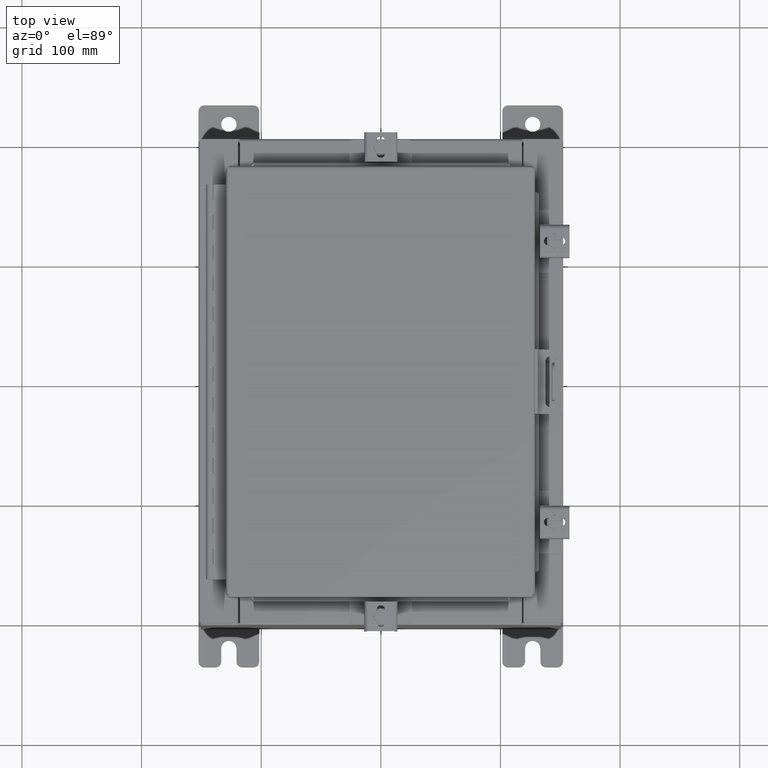
[diagram: clean part render]
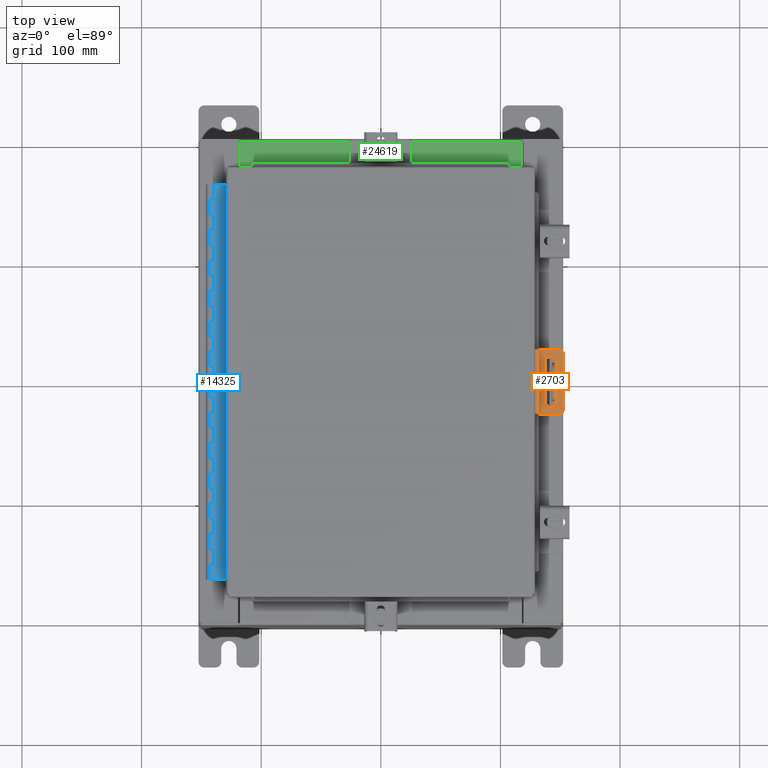
[diagram: same view with three faces highlighted in distinct colors, each labeled with its STEP entity id]
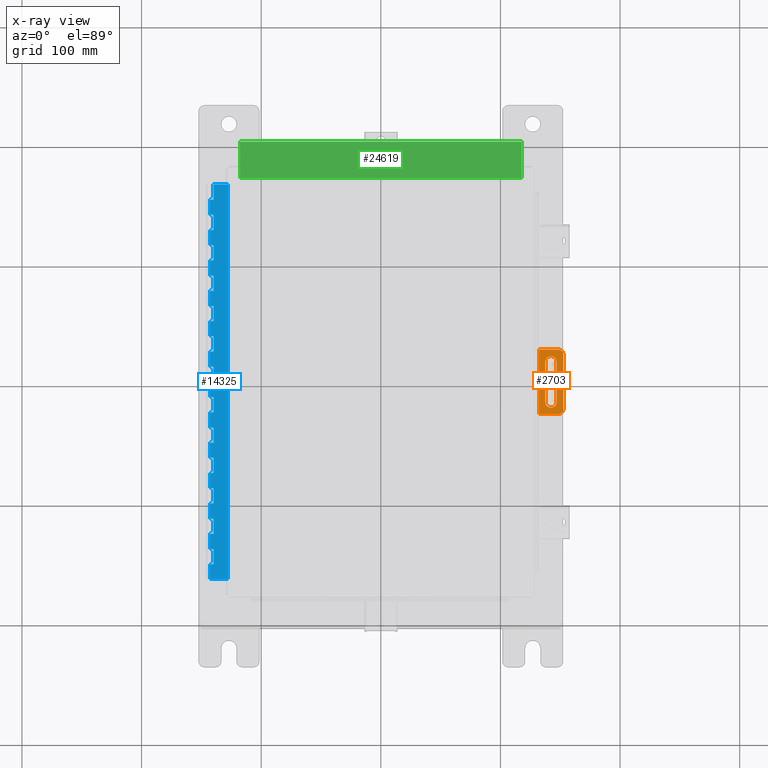
[diagram: x-ray of the same camera — body ghosted, the three highlighted faces saturated]
A machine part, top view with three faces highlighted in distinct colors.
The next image is the same camera in x-ray (body ghosted, the three faces saturated) — at least one of them is partly hidden behind the body in this view.
Their STEP definitions:

[orange] entity #2703 — the highlighted planar face has unit normal (0, -0, -1).
#27 = AXIS2_PLACEMENT_3D ( 'NONE', #14111, #2066, #16121 ) ;
#209 = EDGE_LOOP ( 'NONE', ( #11507, #19767, #4481, #22010, #22590, #15002 ) ) ;
#731 = CARTESIAN_POINT ( 'NONE',  ( 0.3460000000000000900, -0.3000000000000008200, -0.6534999999999997500 ) ) ;
#947 = EDGE_CURVE ( 'NONE', #8417, #24332, #3268, .T. ) ;
#1013 = DIRECTION ( 'NONE',  ( 3.496114991891766800E-015, 1.000000000000000000, -0.0000000000000000000 ) ) ;
#1136 = EDGE_CURVE ( 'NONE', #8820, #6342, #20865, .T. ) ;
#2066 = DIRECTION ( 'NONE',  ( 3.496114991891766800E-015, 1.000000000000000000, 0.0000000000000000000 ) ) ;
#2544 = ORIENTED_EDGE ( 'NONE', *, *, #24155, .F. ) ;
#2680 = EDGE_CURVE ( 'NONE', #9572, #26076, #20170, .T. ) ;
#2703 = ADVANCED_FACE ( 'NONE', ( #8848, #19532 ), #5962, .F. ) ;
#2712 = VERTEX_POINT ( 'NONE', #24069 ) ;
#3268 = CIRCLE ( 'NONE', #4375, 0.1559999999999999200 ) ;
#3436 = LINE ( 'NONE', #731, #23570 ) ;
#3899 = CARTESIAN_POINT ( 'NONE',  ( 0.7210000000000000900, -0.3000000000000021500, -0.6534999999999998600 ) ) ;
#3938 = CARTESIAN_POINT ( 'NONE',  ( 0.9399999999999998400, -0.3000000000000029300, 1.059999999999999600 ) ) ;
#4375 = AXIS2_PLACEMENT_3D ( 'NONE', #13075, #1013, #15079 ) ;
#4481 = ORIENTED_EDGE ( 'NONE', *, *, #21817, .T. ) ;
#4564 = CARTESIAN_POINT ( 'NONE',  ( 0.7840000000000000300, -0.3000000000000023800, -1.060000000000000300 ) ) ;
#4722 = EDGE_CURVE ( 'NONE', #16506, #9535, #24148, .T. ) ;
#5884 = DIRECTION ( 'NONE',  ( 3.496114991891766800E-015, 1.000000000000000000, -0.0000000000000000000 ) ) ;
#5962 = PLANE ( 'NONE',  #23287 ) ;
#6342 = VERTEX_POINT ( 'NONE', #21374 ) ;
#7412 = ORIENTED_EDGE ( 'NONE', *, *, #4722, .F. ) ;
#7641 = DIRECTION ( 'NONE',  ( 3.496114991891766800E-015, 1.000000000000000000, 0.0000000000000000000 ) ) ;
#7979 = DIRECTION ( 'NONE',  ( 1.000000000000000000, -3.496114991891766800E-015, 0.0000000000000000000 ) ) ;
#8302 = ORIENTED_EDGE ( 'NONE', *, *, #11667, .F. ) ;
#8417 = VERTEX_POINT ( 'NONE', #11375 ) ;
#8420 = CARTESIAN_POINT ( 'NONE',  ( 0.9399999999999998400, -0.3000000000000029300, 0.9040000000000000300 ) ) ;
#8498 = CARTESIAN_POINT ( 'NONE',  ( 0.7210000000000002000, -0.3000000000000021500, 0.6595000000000002000 ) ) ;
#8820 = VERTEX_POINT ( 'NONE', #15351 ) ;
#8848 = FACE_BOUND ( 'NONE', #21340, .T. ) ;
#9535 = VERTEX_POINT ( 'NONE', #3899 ) ;
#9572 = VERTEX_POINT ( 'NONE', #24029 ) ;
#10184 = VECTOR ( 'NONE', #11656, 39.37007874015748100 ) ;
#10605 = ORIENTED_EDGE ( 'NONE', *, *, #17242, .F. ) ;
#10663 = EDGE_CURVE ( 'NONE', #26076, #8417, #18349, .T. ) ;
#10801 = VERTEX_POINT ( 'NONE', #18245 ) ;
#11088 = VECTOR ( 'NONE', #24331, 39.37007874015748100 ) ;
#11375 = CARTESIAN_POINT ( 'NONE',  ( 0.9399999999999998400, -0.3000000000000029300, -0.9040000000000002500 ) ) ;
#11507 = ORIENTED_EDGE ( 'NONE', *, *, #10663, .T. ) ;
#11656 = DIRECTION ( 'NONE',  ( -0.0000000000000000000, -0.0000000000000000000, 1.000000000000000000 ) ) ;
#11667 = EDGE_CURVE ( 'NONE', #2712, #16506, #23653, .T. ) ;
#11775 = VECTOR ( 'NONE', #25926, 39.37007874015748100 ) ;
#11968 = DIRECTION ( 'NONE',  ( -3.496114991891766800E-015, -1.000000000000000000, 0.0000000000000000000 ) ) ;
#12448 = DIRECTION ( 'NONE',  ( -1.000000000000000000, 3.496114991891766400E-015, 0.0000000000000000000 ) ) ;
#13075 = CARTESIAN_POINT ( 'NONE',  ( 0.7839999999999999200, -0.3000000000000023200, -0.9040000000000002500 ) ) ;
#13487 = VECTOR ( 'NONE', #13638, 39.37007874015748100 ) ;
#13638 = DIRECTION ( 'NONE',  ( -1.040307689894997300E-016, 0.0000000000000000000, -1.000000000000000000 ) ) ;
#14111 = CARTESIAN_POINT ( 'NONE',  ( 0.5335000000000003100, -0.3000000000000014900, 0.6594999999999999800 ) ) ;
#15002 = ORIENTED_EDGE ( 'NONE', *, *, #2680, .T. ) ;
#15079 = DIRECTION ( 'NONE',  ( 1.000000000000000000, -3.502369222646493300E-015, 0.0000000000000000000 ) ) ;
#15194 = AXIS2_PLACEMENT_3D ( 'NONE', #17923, #5884, #19952 ) ;
#15335 = EDGE_CURVE ( 'NONE', #9572, #6342, #21777, .T. ) ;
#15351 = CARTESIAN_POINT ( 'NONE',  ( 0.1299999999999998400, -0.3000000000000001000, -1.060000000000000300 ) ) ;
#16121 = DIRECTION ( 'NONE',  ( -1.000000000000000000, 3.460340791974733800E-015, 0.0000000000000000000 ) ) ;
#16506 = VERTEX_POINT ( 'NONE', #8498 ) ;
#17242 = EDGE_CURVE ( 'NONE', #10801, #2712, #3436, .T. ) ;
#17635 = CARTESIAN_POINT ( 'NONE',  ( 0.1299999999999998900, -0.3000000000000001000, 1.059999999999999600 ) ) ;
#17923 = CARTESIAN_POINT ( 'NONE',  ( 0.7839999999999999200, -0.3000000000000023200, 0.9040000000000000300 ) ) ;
#18245 = CARTESIAN_POINT ( 'NONE',  ( 0.3460000000000000900, -0.3000000000000008800, -0.6534999999999997500 ) ) ;
#18349 = LINE ( 'NONE', #19847, #11775 ) ;
#18946 = CIRCLE ( 'NONE', #21279, 0.1874999999999999700 ) ;
#19532 = FACE_OUTER_BOUND ( 'NONE', #209, .T. ) ;
#19684 = CARTESIAN_POINT ( 'NONE',  ( 0.5335000000000000900, -0.3000000000000014900, -0.6534999999999998600 ) ) ;
#19767 = ORIENTED_EDGE ( 'NONE', *, *, #947, .T. ) ;
#19847 = CARTESIAN_POINT ( 'NONE',  ( 0.9399999999999998400, -0.3000000000000029300, 1.059999999999999600 ) ) ;
#19952 = DIRECTION ( 'NONE',  ( 1.000000000000000000, -3.502369222646493300E-015, 0.0000000000000000000 ) ) ;
#20170 = CIRCLE ( 'NONE', #15194, 0.1559999999999999200 ) ;
#20654 = VECTOR ( 'NONE', #12448, 39.37007874015748100 ) ;
#20865 = LINE ( 'NONE', #17635, #10184 ) ;
#21260 = LINE ( 'NONE', #22424, #20654 ) ;
#21279 = AXIS2_PLACEMENT_3D ( 'NONE', #19684, #7641, #21699 ) ;
#21340 = EDGE_LOOP ( 'NONE', ( #7412, #8302, #10605, #2544 ) ) ;
#21374 = CARTESIAN_POINT ( 'NONE',  ( 0.1299999999999998400, -0.3000000000000001000, 1.059999999999999600 ) ) ;
#21699 = DIRECTION ( 'NONE',  ( -1.000000000000000000, 3.460340791974733800E-015, 0.0000000000000000000 ) ) ;
#21777 = LINE ( 'NONE', #24243, #11088 ) ;
#21817 = EDGE_CURVE ( 'NONE', #24332, #8820, #21260, .T. ) ;
#22010 = ORIENTED_EDGE ( 'NONE', *, *, #1136, .T. ) ;
#22424 = CARTESIAN_POINT ( 'NONE',  ( 0.9399999999999998400, -0.3000000000000029300, -1.060000000000000300 ) ) ;
#22590 = ORIENTED_EDGE ( 'NONE', *, *, #15335, .F. ) ;
#22778 = DIRECTION ( 'NONE',  ( 5.201538449474986600E-017, 0.0000000000000000000, 1.000000000000000000 ) ) ;
#23287 = AXIS2_PLACEMENT_3D ( 'NONE', #3938, #11968, #7979 ) ;
#23570 = VECTOR ( 'NONE', #22778, 39.37007874015748100 ) ;
#23653 = CIRCLE ( 'NONE', #27, 0.1874999999999999700 ) ;
#24029 = CARTESIAN_POINT ( 'NONE',  ( 0.7839999999999999200, -0.3000000000000023800, 1.059999999999999600 ) ) ;
#24069 = CARTESIAN_POINT ( 'NONE',  ( 0.3460000000000001400, -0.3000000000000008200, 0.6594999999999999800 ) ) ;
#24148 = LINE ( 'NONE', #25767, #13487 ) ;
#24155 = EDGE_CURVE ( 'NONE', #9535, #10801, #18946, .T. ) ;
#24243 = CARTESIAN_POINT ( 'NONE',  ( 0.9399999999999998400, -0.3000000000000029300, 1.059999999999999600 ) ) ;
#24331 = DIRECTION ( 'NONE',  ( -1.000000000000000000, 3.496114991891766400E-015, 0.0000000000000000000 ) ) ;
#24332 = VERTEX_POINT ( 'NONE', #4564 ) ;
#25767 = CARTESIAN_POINT ( 'NONE',  ( 0.7210000000000002000, -0.3000000000000021500, 0.6594999999999999800 ) ) ;
#25926 = DIRECTION ( 'NONE',  ( -0.0000000000000000000, -0.0000000000000000000, -1.000000000000000000 ) ) ;
#26076 = VERTEX_POINT ( 'NONE', #8420 ) ;

[blue] entity #14325 — the highlighted planar face has unit normal (-0, -0, 1).
#55 = LINE ( 'NONE', #15370, #20811 ) ;
#150 = CARTESIAN_POINT ( 'NONE',  ( -0.6869999999999978300, 0.6754999999999996600, -10.50000000000000000 ) ) ;
#192 = VERTEX_POINT ( 'NONE', #13257 ) ;
#257 = DIRECTION ( 'NONE',  ( 0.0000000000000000000, 0.0000000000000000000, 1.000000000000000000 ) ) ;
#259 = VERTEX_POINT ( 'NONE', #25461 ) ;
#353 = CARTESIAN_POINT ( 'NONE',  ( -0.6869999999999982800, 0.5504999999999997700, -1.499999999999999800 ) ) ;
#366 = ORIENTED_EDGE ( 'NONE', *, *, #2950, .F. ) ;
#400 = VERTEX_POINT ( 'NONE', #9815 ) ;
#461 = ORIENTED_EDGE ( 'NONE', *, *, #14924, .F. ) ;
#521 = VECTOR ( 'NONE', #590, 39.37007874015748100 ) ;
#542 = CARTESIAN_POINT ( 'NONE',  ( -0.6869999999999973900, 0.8004999999999995500, -12.49999999999999800 ) ) ;
#546 = EDGE_CURVE ( 'NONE', #19321, #14935, #17457, .T. ) ;
#554 = DIRECTION ( 'NONE',  ( 0.0000000000000000000, -0.0000000000000000000, -1.000000000000000000 ) ) ;
#590 = DIRECTION ( 'NONE',  ( 0.0000000000000000000, -0.0000000000000000000, -1.000000000000000000 ) ) ;
#691 = VERTEX_POINT ( 'NONE', #8744 ) ;
#741 = VECTOR ( 'NONE', #14466, 39.37007874015748100 ) ;
#761 = DIRECTION ( 'NONE',  ( 3.389037039080723100E-015, 1.000000000000000000, -0.0000000000000000000 ) ) ;
#908 = LINE ( 'NONE', #8776, #21662 ) ;
#909 = EDGE_CURVE ( 'NONE', #11211, #15357, #19954, .T. ) ;
#913 = VERTEX_POINT ( 'NONE', #20870 ) ;
#1059 = FACE_OUTER_BOUND ( 'NONE', #7749, .T. ) ;
#1081 = ORIENTED_EDGE ( 'NONE', *, *, #12090, .F. ) ;
#1108 = VERTEX_POINT ( 'NONE', #13587 ) ;
#1217 = EDGE_CURVE ( 'NONE', #2573, #9838, #18975, .T. ) ;
#1316 = DIRECTION ( 'NONE',  ( 0.0000000000000000000, -0.0000000000000000000, -1.000000000000000000 ) ) ;
#1380 = VERTEX_POINT ( 'NONE', #6533 ) ;
#1410 = LINE ( 'NONE', #22937, #5492 ) ;
#1413 = CARTESIAN_POINT ( 'NONE',  ( -0.6869999999999978300, 0.6754999999999996600, -11.50000000000000000 ) ) ;
#1514 = VECTOR ( 'NONE', #22286, 39.37007874015748100 ) ;
#1565 = EDGE_CURVE ( 'NONE', #21164, #21100, #16772, .T. ) ;
#1596 = VECTOR ( 'NONE', #2541, 39.37007874015748100 ) ;
#1619 = CARTESIAN_POINT ( 'NONE',  ( -0.6869999999999978300, 0.6754999999999996600, -10.00000000000000000 ) ) ;
#1728 = CARTESIAN_POINT ( 'NONE',  ( -0.6869999999999978300, 0.6754999999999996600, -13.00000000000000000 ) ) ;
#1738 = VECTOR ( 'NONE', #22192, 39.37007874015748100 ) ;
#1805 = DIRECTION ( 'NONE',  ( 0.0000000000000000000, -0.0000000000000000000, -1.000000000000000000 ) ) ;
#1813 = ORIENTED_EDGE ( 'NONE', *, *, #14118, .F. ) ;
#1840 = ORIENTED_EDGE ( 'NONE', *, *, #1565, .F. ) ;
#2015 = CARTESIAN_POINT ( 'NONE',  ( -0.6869999999999982800, 0.5504999999999997700, -6.499999999999999100 ) ) ;
#2052 = LINE ( 'NONE', #24321, #22186 ) ;
#2122 = LINE ( 'NONE', #15574, #12211 ) ;
#2210 = EDGE_CURVE ( 'NONE', #15524, #9370, #9506, .T. ) ;
#2234 = CARTESIAN_POINT ( 'NONE',  ( -0.6869999999999978300, 0.6754999999999996600, -7.499999999999999100 ) ) ;
#2251 = CARTESIAN_POINT ( 'NONE',  ( -0.6869999999999982800, 0.5504999999999997700, -5.500000000000000000 ) ) ;
#2304 = CARTESIAN_POINT ( 'NONE',  ( -0.6869999999999978300, 0.6754999999999996600, -13.00000000000000000 ) ) ;
#2315 = CARTESIAN_POINT ( 'NONE',  ( -0.6869999999999973900, 0.8004999999999995500, -3.500000000000000000 ) ) ;
#2355 = ORIENTED_EDGE ( 'NONE', *, *, #16146, .F. ) ;
#2387 = CARTESIAN_POINT ( 'NONE',  ( -0.6869999999999973900, 0.8004999999999995500, -5.500000000000000000 ) ) ;
#2448 = CARTESIAN_POINT ( 'NONE',  ( -0.6869999999999982800, 0.5504999999999997700, -5.500000000000000000 ) ) ;
#2495 = VECTOR ( 'NONE', #19962, 39.37007874015748100 ) ;
#2541 = DIRECTION ( 'NONE',  ( -3.389037039080723100E-015, -1.000000000000000000, 0.0000000000000000000 ) ) ;
#2549 = CARTESIAN_POINT ( 'NONE',  ( -0.6869999999999982800, 0.5504999999999997700, -7.499999999999999100 ) ) ;
#2573 = VERTEX_POINT ( 'NONE', #17666 ) ;
#2617 = CARTESIAN_POINT ( 'NONE',  ( -0.6869999999999978300, 0.6754999999999996600, -13.00000000000000000 ) ) ;
#2770 = VERTEX_POINT ( 'NONE', #16510 ) ;
#2786 = EDGE_CURVE ( 'NONE', #3822, #21262, #18270, .T. ) ;
#2914 = DIRECTION ( 'NONE',  ( 3.389037039080723100E-015, 1.000000000000000000, -0.0000000000000000000 ) ) ;
#2939 = PLANE ( 'NONE',  #12391 ) ;
#2950 = EDGE_CURVE ( 'NONE', #19297, #18452, #8530, .T. ) ;
#2981 = VERTEX_POINT ( 'NONE', #16850 ) ;
#3009 = VECTOR ( 'NONE', #25497, 39.37007874015748100 ) ;
#3197 = VECTOR ( 'NONE', #20857, 39.37007874015748100 ) ;
#3361 = DIRECTION ( 'NONE',  ( -3.389037039080723100E-015, -1.000000000000000000, 0.0000000000000000000 ) ) ;
#3495 = VECTOR ( 'NONE', #21642, 39.37007874015748100 ) ;
#3527 = VECTOR ( 'NONE', #554, 39.37007874015748100 ) ;
#3628 = LINE ( 'NONE', #20159, #19676 ) ;
#3649 = EDGE_CURVE ( 'NONE', #15524, #9191, #20129, .T. ) ;
#3652 = VERTEX_POINT ( 'NONE', #14960 ) ;
#3695 = CARTESIAN_POINT ( 'NONE',  ( -0.6869999999999982800, 0.5504999999999997700, -9.000000000000000000 ) ) ;
#3730 = VERTEX_POINT ( 'NONE', #7141 ) ;
#3819 = VECTOR ( 'NONE', #16608, 39.37007874015748100 ) ;
#3822 = VERTEX_POINT ( 'NONE', #1413 ) ;
#3852 = ORIENTED_EDGE ( 'NONE', *, *, #25475, .F. ) ;
#3916 = LINE ( 'NONE', #1728, #13373 ) ;
#3923 = ORIENTED_EDGE ( 'NONE', *, *, #909, .F. ) ;
#3985 = EDGE_CURVE ( 'NONE', #11765, #2770, #25145, .T. ) ;
#4040 = DIRECTION ( 'NONE',  ( 0.0000000000000000000, -0.0000000000000000000, -1.000000000000000000 ) ) ;
#4102 = CARTESIAN_POINT ( 'NONE',  ( -0.6869999999999973900, 0.8004999999999995500, -11.00000000000000000 ) ) ;
#4397 = VECTOR ( 'NONE', #17958, 39.37007874015748100 ) ;
#4512 = VECTOR ( 'NONE', #24140, 39.37007874015748100 ) ;
#4557 = VERTEX_POINT ( 'NONE', #7138 ) ;
#4560 = CARTESIAN_POINT ( 'NONE',  ( -0.6869999999999973900, 0.8004999999999995500, -2.000000000000000000 ) ) ;
#4699 = ORIENTED_EDGE ( 'NONE', *, *, #3649, .F. ) ;
#4701 = CARTESIAN_POINT ( 'NONE',  ( -0.6869999999999982800, 0.5504999999999997700, -8.000000000000000000 ) ) ;
#4736 = ORIENTED_EDGE ( 'NONE', *, *, #11910, .F. ) ;
#4799 = DIRECTION ( 'NONE',  ( -3.389037039080723100E-015, -1.000000000000000000, 0.0000000000000000000 ) ) ;
#4904 = DIRECTION ( 'NONE',  ( 0.0000000000000000000, -0.0000000000000000000, -1.000000000000000000 ) ) ;
#4949 = EDGE_CURVE ( 'NONE', #7785, #22432, #14410, .T. ) ;
#5096 = EDGE_CURVE ( 'NONE', #7540, #21054, #15323, .T. ) ;
#5117 = DIRECTION ( 'NONE',  ( 0.0000000000000000000, 0.0000000000000000000, 1.000000000000000000 ) ) ;
#5349 = CARTESIAN_POINT ( 'NONE',  ( -0.6869999999999978300, 0.6754999999999996600, -13.00000000000000000 ) ) ;
#5418 = ORIENTED_EDGE ( 'NONE', *, *, #12176, .F. ) ;
#5426 = DIRECTION ( 'NONE',  ( -3.389037039080723100E-015, -1.000000000000000000, 0.0000000000000000000 ) ) ;
#5471 = VECTOR ( 'NONE', #6201, 39.37007874015748100 ) ;
#5492 = VECTOR ( 'NONE', #16972, 39.37007874015748100 ) ;
#5500 = CARTESIAN_POINT ( 'NONE',  ( -0.6869999999999978300, 0.6754999999999996600, -1.499999999999999800 ) ) ;
#5557 = CARTESIAN_POINT ( 'NONE',  ( -0.6869999999999973900, 0.8004999999999995500, -4.500000000000000000 ) ) ;
#5564 = CARTESIAN_POINT ( 'NONE',  ( -0.6869999999999973900, 0.8004999999999995500, -1.499999999999999800 ) ) ;
#5748 = CARTESIAN_POINT ( 'NONE',  ( -0.6869999999999978300, 0.6754999999999996600, -8.500000000000000000 ) ) ;
#5919 = CARTESIAN_POINT ( 'NONE',  ( -0.6869999999999978300, 0.6754999999999996600, -13.00000000000000000 ) ) ;
#5932 = ORIENTED_EDGE ( 'NONE', *, *, #1217, .F. ) ;
#6098 = CARTESIAN_POINT ( 'NONE',  ( -0.6869999999999973900, 0.8004999999999995500, -1.000000000000000000 ) ) ;
#6201 = DIRECTION ( 'NONE',  ( -3.389037039080723100E-015, -1.000000000000000000, 0.0000000000000000000 ) ) ;
#6316 = DIRECTION ( 'NONE',  ( 0.0000000000000000000, -0.0000000000000000000, -1.000000000000000000 ) ) ;
#6519 = VERTEX_POINT ( 'NONE', #11917 ) ;
#6533 = CARTESIAN_POINT ( 'NONE',  ( -0.6869999999999982800, 0.5504999999999997700, -7.000000000000000000 ) ) ;
#6555 = CARTESIAN_POINT ( 'NONE',  ( -0.6869999999999998300, 0.07549999999999991400, 0.0000000000000000000 ) ) ;
#6628 = VECTOR ( 'NONE', #18718, 39.37007874015748100 ) ;
#6645 = VECTOR ( 'NONE', #4904, 39.37007874015748100 ) ;
#6664 = VECTOR ( 'NONE', #5117, 39.37007874015748100 ) ;
#6677 = ORIENTED_EDGE ( 'NONE', *, *, #23006, .F. ) ;
#6808 = EDGE_CURVE ( 'NONE', #3822, #192, #16185, .T. ) ;
#6812 = EDGE_CURVE ( 'NONE', #15357, #15159, #1410, .T. ) ;
#6986 = VECTOR ( 'NONE', #24202, 39.37007874015748100 ) ;
#6990 = DIRECTION ( 'NONE',  ( 1.000000000000000000, -3.369016658928398200E-015, 0.0000000000000000000 ) ) ;
#6993 = EDGE_CURVE ( 'NONE', #20872, #2573, #22464, .T. ) ;
#7063 = ORIENTED_EDGE ( 'NONE', *, *, #17091, .F. ) ;
#7138 = CARTESIAN_POINT ( 'NONE',  ( -0.6869999999999982800, 0.5504999999999997700, -10.50000000000000000 ) ) ;
#7141 = CARTESIAN_POINT ( 'NONE',  ( -0.6869999999999978300, 0.6754999999999996600, -0.5000000000000000000 ) ) ;
#7221 = LINE ( 'NONE', #22345, #11315 ) ;
#7222 = CARTESIAN_POINT ( 'NONE',  ( -0.6869999999999978300, 0.6754999999999996600, -2.999999999999999600 ) ) ;
#7319 = DIRECTION ( 'NONE',  ( 3.369016658928398200E-015, 1.000000000000000000, 0.0000000000000000000 ) ) ;
#7448 = CARTESIAN_POINT ( 'NONE',  ( -0.6869999999999973900, 0.8004999999999995500, -6.000000000000000900 ) ) ;
#7473 = VERTEX_POINT ( 'NONE', #2448 ) ;
#7484 = CARTESIAN_POINT ( 'NONE',  ( -0.6869999999999982800, 0.5504999999999997700, -2.999999999999999600 ) ) ;
#7535 = EDGE_CURVE ( 'NONE', #8208, #7596, #908, .T. ) ;
#7540 = VERTEX_POINT ( 'NONE', #12834 ) ;
#7596 = VERTEX_POINT ( 'NONE', #10974 ) ;
#7632 = VECTOR ( 'NONE', #4040, 39.37007874015748100 ) ;
#7749 = EDGE_LOOP ( 'NONE', ( #4699, #21020, #11868, #19932, #20070, #10047, #2355, #23336, #23924, #23050, #16189, #6677, #9585, #11621, #5932, #24806, #21477, #10944, #22302, #3923, #9487, #20145, #14571, #7063, #8865, #461, #18514, #15992, #10975, #17710, #1813, #8173, #20890, #366, #16994, #5418, #13978, #25854, #22765, #23505, #19114, #1840, #3852, #13451, #25793, #22457, #17342, #23263, #17062, #9561, #4736, #13654, #15006, #1081 ) ) ;
#7785 = VERTEX_POINT ( 'NONE', #23607 ) ;
#7827 = VERTEX_POINT ( 'NONE', #11587 ) ;
#7869 = CARTESIAN_POINT ( 'NONE',  ( -0.6869999999999973900, 0.8004999999999995500, -11.99999999999999800 ) ) ;
#7902 = LINE ( 'NONE', #4560, #3819 ) ;
#7938 = DIRECTION ( 'NONE',  ( 0.0000000000000000000, 0.0000000000000000000, 1.000000000000000000 ) ) ;
#8022 = EDGE_CURVE ( 'NONE', #15159, #25952, #21639, .T. ) ;
#8122 = DIRECTION ( 'NONE',  ( -3.389037039080723100E-015, -1.000000000000000000, 0.0000000000000000000 ) ) ;
#8173 = ORIENTED_EDGE ( 'NONE', *, *, #23783, .F. ) ;
#8202 = DIRECTION ( 'NONE',  ( 0.0000000000000000000, 0.0000000000000000000, 1.000000000000000000 ) ) ;
#8208 = VERTEX_POINT ( 'NONE', #4701 ) ;
#8246 = VECTOR ( 'NONE', #20008, 39.37007874015748100 ) ;
#8248 = CARTESIAN_POINT ( 'NONE',  ( -0.6869999999999982800, 0.5504999999999997700, -2.000000000000000000 ) ) ;
#8257 = LINE ( 'NONE', #2015, #7632 ) ;
#8360 = LINE ( 'NONE', #12280, #18403 ) ;
#8429 = DIRECTION ( 'NONE',  ( -3.389037039080723100E-015, -1.000000000000000000, 0.0000000000000000000 ) ) ;
#8461 = EDGE_CURVE ( 'NONE', #9302, #18601, #2122, .T. ) ;
#8530 = LINE ( 'NONE', #12817, #14501 ) ;
#8549 = VERTEX_POINT ( 'NONE', #9876 ) ;
#8560 = LINE ( 'NONE', #14808, #3197 ) ;
#8744 = CARTESIAN_POINT ( 'NONE',  ( -0.6869999999999982800, 0.5504999999999997700, -2.500000000000000000 ) ) ;
#8776 = CARTESIAN_POINT ( 'NONE',  ( -0.6869999999999973900, 0.8004999999999995500, -8.000000000000000000 ) ) ;
#8832 = EDGE_CURVE ( 'NONE', #1108, #16784, #20039, .T. ) ;
#8865 = ORIENTED_EDGE ( 'NONE', *, *, #3985, .T. ) ;
#8871 = VECTOR ( 'NONE', #20486, 39.37007874015748100 ) ;
#8879 = CARTESIAN_POINT ( 'NONE',  ( -0.6869999999999978300, 0.6754999999999996600, -13.00000000000000000 ) ) ;
#8960 = VECTOR ( 'NONE', #16685, 39.37007874015748100 ) ;
#9017 = CARTESIAN_POINT ( 'NONE',  ( -0.6869999999999982800, 0.5504999999999997700, -12.49999999999999800 ) ) ;
#9191 = VERTEX_POINT ( 'NONE', #6555 ) ;
#9224 = EDGE_CURVE ( 'NONE', #6519, #9370, #11864, .T. ) ;
#9249 = CARTESIAN_POINT ( 'NONE',  ( -0.6870000000000022800, -0.6245000000000003900, 0.0000000000000000000 ) ) ;
#9302 = VERTEX_POINT ( 'NONE', #15245 ) ;
#9370 = VERTEX_POINT ( 'NONE', #25539 ) ;
#9481 = VECTOR ( 'NONE', #7319, 39.37007874015748100 ) ;
#9487 = ORIENTED_EDGE ( 'NONE', *, *, #11276, .T. ) ;
#9488 = VERTEX_POINT ( 'NONE', #25897 ) ;
#9506 = LINE ( 'NONE', #24534, #8871 ) ;
#9561 = ORIENTED_EDGE ( 'NONE', *, *, #20737, .F. ) ;
#9573 = LINE ( 'NONE', #12988, #15540 ) ;
#9579 = EDGE_CURVE ( 'NONE', #3730, #11809, #3628, .T. ) ;
#9585 = ORIENTED_EDGE ( 'NONE', *, *, #12016, .T. ) ;
#9623 = EDGE_CURVE ( 'NONE', #19321, #21100, #8360, .T. ) ;
#9815 = CARTESIAN_POINT ( 'NONE',  ( -0.6869999999999978300, 0.6754999999999996600, -5.500000000000000000 ) ) ;
#9838 = VERTEX_POINT ( 'NONE', #20761 ) ;
#9876 = CARTESIAN_POINT ( 'NONE',  ( -0.6869999999999982800, 0.5504999999999997700, -4.500000000000000000 ) ) ;
#9984 = CARTESIAN_POINT ( 'NONE',  ( -0.6869999999999978300, 0.6754999999999996600, -13.00000000000000000 ) ) ;
#10047 = ORIENTED_EDGE ( 'NONE', *, *, #11634, .F. ) ;
#10064 = CARTESIAN_POINT ( 'NONE',  ( -0.6869999999999982800, 0.5504999999999997700, -1.000000000000000000 ) ) ;
#10077 = EDGE_CURVE ( 'NONE', #9838, #16864, #25632, .T. ) ;
#10172 = VECTOR ( 'NONE', #25008, 39.37007874015748100 ) ;
#10218 = VECTOR ( 'NONE', #20916, 39.37007874015748100 ) ;
#10249 = CARTESIAN_POINT ( 'NONE',  ( -0.6869999999999973900, 0.8004999999999995500, -9.000000000000000000 ) ) ;
#10279 = VECTOR ( 'NONE', #17620, 39.37007874015748100 ) ;
#10383 = LINE ( 'NONE', #2251, #20439 ) ;
#10444 = CARTESIAN_POINT ( 'NONE',  ( -0.6869999999999973900, 0.8004999999999995500, -11.50000000000000000 ) ) ;
#10768 = EDGE_CURVE ( 'NONE', #259, #192, #25920, .T. ) ;
#10772 = VERTEX_POINT ( 'NONE', #150 ) ;
#10827 = VERTEX_POINT ( 'NONE', #18328 ) ;
#10944 = ORIENTED_EDGE ( 'NONE', *, *, #8022, .F. ) ;
#10974 = CARTESIAN_POINT ( 'NONE',  ( -0.6869999999999978300, 0.6754999999999996600, -8.000000000000000000 ) ) ;
#10975 = ORIENTED_EDGE ( 'NONE', *, *, #18961, .T. ) ;
#11037 = EDGE_CURVE ( 'NONE', #3730, #3652, #21478, .T. ) ;
#11211 = VERTEX_POINT ( 'NONE', #5748 ) ;
#11276 = EDGE_CURVE ( 'NONE', #11211, #7596, #20531, .T. ) ;
#11315 = VECTOR ( 'NONE', #18295, 39.37007874015748100 ) ;
#11432 = CARTESIAN_POINT ( 'NONE',  ( -0.6869999999999973900, 0.8004999999999995500, -9.500000000000000000 ) ) ;
#11587 = CARTESIAN_POINT ( 'NONE',  ( -0.6869999999999978300, 0.6754999999999996600, -1.000000000000000000 ) ) ;
#11621 = ORIENTED_EDGE ( 'NONE', *, *, #10077, .F. ) ;
#11634 = EDGE_CURVE ( 'NONE', #2981, #913, #13610, .T. ) ;
#11687 = VECTOR ( 'NONE', #8429, 39.37007874015748100 ) ;
#11705 = EDGE_CURVE ( 'NONE', #9488, #18601, #12974, .T. ) ;
#11720 = CARTESIAN_POINT ( 'NONE',  ( -0.6869999999999982800, 0.5504999999999997700, -3.500000000000000000 ) ) ;
#11765 = VERTEX_POINT ( 'NONE', #2234 ) ;
#11809 = VERTEX_POINT ( 'NONE', #12477 ) ;
#11823 = CARTESIAN_POINT ( 'NONE',  ( -0.6869999999999978300, 0.6754999999999996600, -3.500000000000000000 ) ) ;
#11864 = LINE ( 'NONE', #9017, #521 ) ;
#11868 = ORIENTED_EDGE ( 'NONE', *, *, #9224, .F. ) ;
#11897 = LINE ( 'NONE', #11720, #21941 ) ;
#11910 = EDGE_CURVE ( 'NONE', #11809, #20721, #8560, .T. ) ;
#11917 = CARTESIAN_POINT ( 'NONE',  ( -0.6869999999999982800, 0.5504999999999997700, -12.49999999999999800 ) ) ;
#12016 = EDGE_CURVE ( 'NONE', #10772, #16864, #16729, .T. ) ;
#12090 = EDGE_CURVE ( 'NONE', #9191, #3652, #20175, .T. ) ;
#12124 = VECTOR ( 'NONE', #24381, 39.37007874015748100 ) ;
#12176 = EDGE_CURVE ( 'NONE', #9302, #8549, #24252, .T. ) ;
#12211 = VECTOR ( 'NONE', #17615, 39.37007874015748100 ) ;
#12280 = CARTESIAN_POINT ( 'NONE',  ( -0.6869999999999978300, 0.6754999999999996600, -13.00000000000000000 ) ) ;
#12304 = DIRECTION ( 'NONE',  ( 0.0000000000000000000, -0.0000000000000000000, -1.000000000000000000 ) ) ;
#12391 = AXIS2_PLACEMENT_3D ( 'NONE', #17018, #6990, #21042 ) ;
#12415 = EDGE_CURVE ( 'NONE', #10827, #8208, #14862, .T. ) ;
#12477 = CARTESIAN_POINT ( 'NONE',  ( -0.6869999999999982800, 0.5504999999999997700, -0.5000000000000000000 ) ) ;
#12817 = CARTESIAN_POINT ( 'NONE',  ( -0.6869999999999973900, 0.8004999999999995500, -5.000000000000000000 ) ) ;
#12834 = CARTESIAN_POINT ( 'NONE',  ( -0.6869999999999978300, 0.6754999999999996600, -6.499999999999999100 ) ) ;
#12943 = DIRECTION ( 'NONE',  ( 0.0000000000000000000, 0.0000000000000000000, 1.000000000000000000 ) ) ;
#12974 = LINE ( 'NONE', #14192, #6986 ) ;
#12981 = CARTESIAN_POINT ( 'NONE',  ( -0.6869999999999978300, 0.6754999999999996600, -13.00000000000000000 ) ) ;
#12988 = CARTESIAN_POINT ( 'NONE',  ( -0.6869999999999982800, 0.5504999999999997700, -10.50000000000000000 ) ) ;
#13018 = VECTOR ( 'NONE', #1805, 39.37007874015748100 ) ;
#13257 = CARTESIAN_POINT ( 'NONE',  ( -0.6869999999999978300, 0.6754999999999996600, -11.00000000000000000 ) ) ;
#13373 = VECTOR ( 'NONE', #13780, 39.37007874015748100 ) ;
#13451 = ORIENTED_EDGE ( 'NONE', *, *, #19192, .F. ) ;
#13516 = EDGE_CURVE ( 'NONE', #15788, #6519, #17647, .T. ) ;
#13587 = CARTESIAN_POINT ( 'NONE',  ( -0.6869999999999982800, 0.5504999999999997700, -6.000000000000000900 ) ) ;
#13610 = LINE ( 'NONE', #7869, #8246 ) ;
#13654 = ORIENTED_EDGE ( 'NONE', *, *, #9579, .F. ) ;
#13726 = LINE ( 'NONE', #5349, #3009 ) ;
#13740 = DIRECTION ( 'NONE',  ( 0.0000000000000000000, -0.0000000000000000000, -1.000000000000000000 ) ) ;
#13746 = CARTESIAN_POINT ( 'NONE',  ( -0.6869999999999982800, 0.5504999999999997700, -5.000000000000000000 ) ) ;
#13780 = DIRECTION ( 'NONE',  ( 0.0000000000000000000, 0.0000000000000000000, 1.000000000000000000 ) ) ;
#13978 = ORIENTED_EDGE ( 'NONE', *, *, #8461, .T. ) ;
#14041 = VECTOR ( 'NONE', #3361, 39.37007874015748100 ) ;
#14118 = EDGE_CURVE ( 'NONE', #7473, #1108, #10383, .T. ) ;
#14192 = CARTESIAN_POINT ( 'NONE',  ( -0.6869999999999973900, 0.8004999999999995500, -4.000000000000000000 ) ) ;
#14325 = ADVANCED_FACE ( 'NONE', ( #1059 ), #2939, .T. ) ;
#14367 = DIRECTION ( 'NONE',  ( 0.0000000000000000000, 0.0000000000000000000, 1.000000000000000000 ) ) ;
#14410 = LINE ( 'NONE', #353, #19109 ) ;
#14429 = DIRECTION ( 'NONE',  ( -3.389037039080723100E-015, -1.000000000000000000, 0.0000000000000000000 ) ) ;
#14466 = DIRECTION ( 'NONE',  ( 3.389037039080723100E-015, 1.000000000000000000, -0.0000000000000000000 ) ) ;
#14470 = LINE ( 'NONE', #5919, #4397 ) ;
#14501 = VECTOR ( 'NONE', #761, 39.37007874015748100 ) ;
#14571 = ORIENTED_EDGE ( 'NONE', *, *, #12415, .F. ) ;
#14572 = LINE ( 'NONE', #20930, #21803 ) ;
#14808 = CARTESIAN_POINT ( 'NONE',  ( -0.6869999999999982800, 0.5504999999999997700, -0.5000000000000000000 ) ) ;
#14827 = CARTESIAN_POINT ( 'NONE',  ( -0.6869999999999973900, 0.8004999999999995500, -8.500000000000000000 ) ) ;
#14862 = LINE ( 'NONE', #2549, #3527 ) ;
#14924 = EDGE_CURVE ( 'NONE', #1380, #2770, #14572, .T. ) ;
#14935 = VERTEX_POINT ( 'NONE', #23032 ) ;
#14960 = CARTESIAN_POINT ( 'NONE',  ( -0.6869999999999978300, 0.6754999999999996600, 0.0000000000000000000 ) ) ;
#15003 = DIRECTION ( 'NONE',  ( 0.0000000000000000000, -0.0000000000000000000, -1.000000000000000000 ) ) ;
#15006 = ORIENTED_EDGE ( 'NONE', *, *, #11037, .T. ) ;
#15159 = VERTEX_POINT ( 'NONE', #3695 ) ;
#15245 = CARTESIAN_POINT ( 'NONE',  ( -0.6869999999999978300, 0.6754999999999996600, -4.500000000000000000 ) ) ;
#15259 = EDGE_CURVE ( 'NONE', #21054, #1380, #8257, .T. ) ;
#15323 = LINE ( 'NONE', #22912, #25401 ) ;
#15357 = VERTEX_POINT ( 'NONE', #20391 ) ;
#15370 = CARTESIAN_POINT ( 'NONE',  ( -0.6869999999999982800, 0.5504999999999997700, -4.500000000000000000 ) ) ;
#15405 = CARTESIAN_POINT ( 'NONE',  ( -0.6869999999999978300, 0.6754999999999996600, -6.000000000000000900 ) ) ;
#15524 = VERTEX_POINT ( 'NONE', #17230 ) ;
#15540 = VECTOR ( 'NONE', #15003, 39.37007874015748100 ) ;
#15574 = CARTESIAN_POINT ( 'NONE',  ( -0.6869999999999978300, 0.6754999999999996600, -13.00000000000000000 ) ) ;
#15650 = EDGE_CURVE ( 'NONE', #8549, #19297, #55, .T. ) ;
#15788 = VERTEX_POINT ( 'NONE', #15812 ) ;
#15812 = CARTESIAN_POINT ( 'NONE',  ( -0.6869999999999978300, 0.6754999999999996600, -12.49999999999999800 ) ) ;
#15992 = ORIENTED_EDGE ( 'NONE', *, *, #5096, .F. ) ;
#16003 = CARTESIAN_POINT ( 'NONE',  ( -0.6869999999999978300, 0.6754999999999996600, -2.500000000000000000 ) ) ;
#16036 = EDGE_CURVE ( 'NONE', #22432, #21914, #7902, .T. ) ;
#16146 = EDGE_CURVE ( 'NONE', #21262, #2981, #17344, .T. ) ;
#16170 = LINE ( 'NONE', #16219, #5471 ) ;
#16185 = LINE ( 'NONE', #8879, #10218 ) ;
#16189 = ORIENTED_EDGE ( 'NONE', *, *, #20397, .F. ) ;
#16219 = CARTESIAN_POINT ( 'NONE',  ( -0.6869999999999973900, 0.8004999999999995500, -10.50000000000000000 ) ) ;
#16452 = LINE ( 'NONE', #2387, #21160 ) ;
#16501 = VECTOR ( 'NONE', #5426, 39.37007874015748100 ) ;
#16510 = CARTESIAN_POINT ( 'NONE',  ( -0.6869999999999978300, 0.6754999999999996600, -7.000000000000000000 ) ) ;
#16608 = DIRECTION ( 'NONE',  ( 3.389037039080723100E-015, 1.000000000000000000, -0.0000000000000000000 ) ) ;
#16685 = DIRECTION ( 'NONE',  ( 0.0000000000000000000, 0.0000000000000000000, 1.000000000000000000 ) ) ;
#16729 = LINE ( 'NONE', #19184, #6664 ) ;
#16772 = LINE ( 'NONE', #20438, #741 ) ;
#16775 = DIRECTION ( 'NONE',  ( 3.389037039080723100E-015, 1.000000000000000000, -0.0000000000000000000 ) ) ;
#16784 = VERTEX_POINT ( 'NONE', #15405 ) ;
#16850 = CARTESIAN_POINT ( 'NONE',  ( -0.6869999999999982800, 0.5504999999999997700, -11.99999999999999800 ) ) ;
#16864 = VERTEX_POINT ( 'NONE', #1619 ) ;
#16904 = CARTESIAN_POINT ( 'NONE',  ( -0.6869999999999998300, 0.07549999999999991400, -13.00000000000000000 ) ) ;
#16950 = CARTESIAN_POINT ( 'NONE',  ( -0.6869999999999982800, 0.5504999999999997700, -11.50000000000000000 ) ) ;
#16969 = EDGE_CURVE ( 'NONE', #22777, #7827, #14470, .T. ) ;
#16972 = DIRECTION ( 'NONE',  ( 0.0000000000000000000, -0.0000000000000000000, -1.000000000000000000 ) ) ;
#16994 = ORIENTED_EDGE ( 'NONE', *, *, #15650, .F. ) ;
#17018 = CARTESIAN_POINT ( 'NONE',  ( -0.6870000000000022800, -0.6245000000000003900, -13.00000000000000000 ) ) ;
#17062 = ORIENTED_EDGE ( 'NONE', *, *, #16969, .T. ) ;
#17091 = EDGE_CURVE ( 'NONE', #11765, #10827, #7221, .T. ) ;
#17230 = CARTESIAN_POINT ( 'NONE',  ( -0.6869999999999998300, 0.07549999999999991400, -13.00000000000000000 ) ) ;
#17320 = LINE ( 'NONE', #20735, #6628 ) ;
#17342 = ORIENTED_EDGE ( 'NONE', *, *, #4949, .F. ) ;
#17344 = LINE ( 'NONE', #16950, #6645 ) ;
#17457 = LINE ( 'NONE', #2315, #12124 ) ;
#17615 = DIRECTION ( 'NONE',  ( 0.0000000000000000000, 0.0000000000000000000, 1.000000000000000000 ) ) ;
#17620 = DIRECTION ( 'NONE',  ( -3.389037039080723100E-015, -1.000000000000000000, 0.0000000000000000000 ) ) ;
#17647 = LINE ( 'NONE', #542, #1596 ) ;
#17666 = CARTESIAN_POINT ( 'NONE',  ( -0.6869999999999982800, 0.5504999999999997700, -9.500000000000000000 ) ) ;
#17710 = ORIENTED_EDGE ( 'NONE', *, *, #8832, .F. ) ;
#17958 = DIRECTION ( 'NONE',  ( 0.0000000000000000000, 0.0000000000000000000, 1.000000000000000000 ) ) ;
#18270 = LINE ( 'NONE', #10444, #11687 ) ;
#18295 = DIRECTION ( 'NONE',  ( -3.389037039080723100E-015, -1.000000000000000000, 0.0000000000000000000 ) ) ;
#18328 = CARTESIAN_POINT ( 'NONE',  ( -0.6869999999999982800, 0.5504999999999997700, -7.499999999999999100 ) ) ;
#18403 = VECTOR ( 'NONE', #8202, 39.37007874015748100 ) ;
#18446 = VECTOR ( 'NONE', #14367, 39.37007874015748100 ) ;
#18452 = VERTEX_POINT ( 'NONE', #20700 ) ;
#18514 = ORIENTED_EDGE ( 'NONE', *, *, #15259, .F. ) ;
#18601 = VERTEX_POINT ( 'NONE', #19290 ) ;
#18718 = DIRECTION ( 'NONE',  ( 0.0000000000000000000, -0.0000000000000000000, -1.000000000000000000 ) ) ;
#18867 = DIRECTION ( 'NONE',  ( -3.389037039080723100E-015, -1.000000000000000000, 0.0000000000000000000 ) ) ;
#18961 = EDGE_CURVE ( 'NONE', #7540, #16784, #24427, .T. ) ;
#18975 = LINE ( 'NONE', #25893, #13018 ) ;
#19109 = VECTOR ( 'NONE', #6316, 39.37007874015748100 ) ;
#19114 = ORIENTED_EDGE ( 'NONE', *, *, #9623, .T. ) ;
#19180 = CARTESIAN_POINT ( 'NONE',  ( -0.6869999999999982800, 0.5504999999999997700, -6.499999999999999100 ) ) ;
#19184 = CARTESIAN_POINT ( 'NONE',  ( -0.6869999999999978300, 0.6754999999999996600, -13.00000000000000000 ) ) ;
#19192 = EDGE_CURVE ( 'NONE', #21322, #691, #20025, .T. ) ;
#19290 = CARTESIAN_POINT ( 'NONE',  ( -0.6869999999999978300, 0.6754999999999996600, -4.000000000000000000 ) ) ;
#19297 = VERTEX_POINT ( 'NONE', #13746 ) ;
#19321 = VERTEX_POINT ( 'NONE', #11823 ) ;
#19487 = DIRECTION ( 'NONE',  ( 3.389037039080723100E-015, 1.000000000000000000, -0.0000000000000000000 ) ) ;
#19488 = VECTOR ( 'NONE', #12943, 39.37007874015748100 ) ;
#19676 = VECTOR ( 'NONE', #8122, 39.37007874015748100 ) ;
#19932 = ORIENTED_EDGE ( 'NONE', *, *, #13516, .F. ) ;
#19954 = LINE ( 'NONE', #14827, #24662 ) ;
#19962 = DIRECTION ( 'NONE',  ( 0.0000000000000000000, 0.0000000000000000000, 1.000000000000000000 ) ) ;
#20008 = DIRECTION ( 'NONE',  ( 3.389037039080723100E-015, 1.000000000000000000, -0.0000000000000000000 ) ) ;
#20025 = LINE ( 'NONE', #25429, #14041 ) ;
#20039 = LINE ( 'NONE', #7448, #26027 ) ;
#20070 = ORIENTED_EDGE ( 'NONE', *, *, #22163, .T. ) ;
#20110 = CARTESIAN_POINT ( 'NONE',  ( -0.6869999999999978300, 0.6754999999999996600, -9.000000000000000000 ) ) ;
#20129 = LINE ( 'NONE', #16904, #19488 ) ;
#20145 = ORIENTED_EDGE ( 'NONE', *, *, #7535, .F. ) ;
#20159 = CARTESIAN_POINT ( 'NONE',  ( -0.6869999999999973900, 0.8004999999999995500, -0.5000000000000000000 ) ) ;
#20175 = LINE ( 'NONE', #9249, #9481 ) ;
#20278 = VECTOR ( 'NONE', #25778, 39.37007874015748100 ) ;
#20391 = CARTESIAN_POINT ( 'NONE',  ( -0.6869999999999982800, 0.5504999999999997700, -8.500000000000000000 ) ) ;
#20397 = EDGE_CURVE ( 'NONE', #4557, #259, #9573, .T. ) ;
#20438 = CARTESIAN_POINT ( 'NONE',  ( -0.6869999999999973900, 0.8004999999999995500, -2.999999999999999600 ) ) ;
#20439 = VECTOR ( 'NONE', #12304, 39.37007874015748100 ) ;
#20486 = DIRECTION ( 'NONE',  ( 3.369016658928398200E-015, 1.000000000000000000, 0.0000000000000000000 ) ) ;
#20507 = CARTESIAN_POINT ( 'NONE',  ( -0.6869999999999978300, 0.6754999999999996600, -9.500000000000000000 ) ) ;
#20531 = LINE ( 'NONE', #9984, #25896 ) ;
#20677 = CARTESIAN_POINT ( 'NONE',  ( -0.6869999999999978300, 0.6754999999999996600, -2.000000000000000000 ) ) ;
#20700 = CARTESIAN_POINT ( 'NONE',  ( -0.6869999999999978300, 0.6754999999999996600, -5.000000000000000000 ) ) ;
#20721 = VERTEX_POINT ( 'NONE', #10064 ) ;
#20735 = CARTESIAN_POINT ( 'NONE',  ( -0.6869999999999982800, 0.5504999999999997700, -2.500000000000000000 ) ) ;
#20737 = EDGE_CURVE ( 'NONE', #20721, #7827, #23114, .T. ) ;
#20761 = CARTESIAN_POINT ( 'NONE',  ( -0.6869999999999982800, 0.5504999999999997700, -10.00000000000000000 ) ) ;
#20811 = VECTOR ( 'NONE', #1316, 39.37007874015748100 ) ;
#20857 = DIRECTION ( 'NONE',  ( 0.0000000000000000000, -0.0000000000000000000, -1.000000000000000000 ) ) ;
#20870 = CARTESIAN_POINT ( 'NONE',  ( -0.6869999999999978300, 0.6754999999999996600, -11.99999999999999800 ) ) ;
#20872 = VERTEX_POINT ( 'NONE', #20507 ) ;
#20890 = ORIENTED_EDGE ( 'NONE', *, *, #22463, .T. ) ;
#20916 = DIRECTION ( 'NONE',  ( 0.0000000000000000000, 0.0000000000000000000, 1.000000000000000000 ) ) ;
#20930 = CARTESIAN_POINT ( 'NONE',  ( -0.6869999999999973900, 0.8004999999999995500, -7.000000000000000000 ) ) ;
#20961 = LINE ( 'NONE', #5564, #10279 ) ;
#21020 = ORIENTED_EDGE ( 'NONE', *, *, #2210, .T. ) ;
#21042 = DIRECTION ( 'NONE',  ( 3.369016658928398200E-015, 1.000000000000000000, 0.0000000000000000000 ) ) ;
#21054 = VERTEX_POINT ( 'NONE', #19180 ) ;
#21100 = VERTEX_POINT ( 'NONE', #7222 ) ;
#21160 = VECTOR ( 'NONE', #14429, 39.37007874015748100 ) ;
#21164 = VERTEX_POINT ( 'NONE', #7484 ) ;
#21226 = EDGE_CURVE ( 'NONE', #14935, #9488, #11897, .T. ) ;
#21262 = VERTEX_POINT ( 'NONE', #25863 ) ;
#21322 = VERTEX_POINT ( 'NONE', #16003 ) ;
#21477 = ORIENTED_EDGE ( 'NONE', *, *, #22589, .T. ) ;
#21478 = LINE ( 'NONE', #12981, #10172 ) ;
#21544 = EDGE_CURVE ( 'NONE', #22777, #7785, #20961, .T. ) ;
#21639 = LINE ( 'NONE', #10249, #1514 ) ;
#21642 = DIRECTION ( 'NONE',  ( -3.389037039080723100E-015, -1.000000000000000000, 0.0000000000000000000 ) ) ;
#21662 = VECTOR ( 'NONE', #16775, 39.37007874015748100 ) ;
#21803 = VECTOR ( 'NONE', #2914, 39.37007874015748100 ) ;
#21914 = VERTEX_POINT ( 'NONE', #20677 ) ;
#21941 = VECTOR ( 'NONE', #13740, 39.37007874015748100 ) ;
#22163 = EDGE_CURVE ( 'NONE', #15788, #913, #13726, .T. ) ;
#22186 = VECTOR ( 'NONE', #257, 39.37007874015748100 ) ;
#22192 = DIRECTION ( 'NONE',  ( 3.389037039080723100E-015, 1.000000000000000000, -0.0000000000000000000 ) ) ;
#22286 = DIRECTION ( 'NONE',  ( 3.389037039080723100E-015, 1.000000000000000000, -0.0000000000000000000 ) ) ;
#22302 = ORIENTED_EDGE ( 'NONE', *, *, #6812, .F. ) ;
#22345 = CARTESIAN_POINT ( 'NONE',  ( -0.6869999999999973900, 0.8004999999999995500, -7.499999999999999100 ) ) ;
#22432 = VERTEX_POINT ( 'NONE', #8248 ) ;
#22457 = ORIENTED_EDGE ( 'NONE', *, *, #16036, .F. ) ;
#22463 = EDGE_CURVE ( 'NONE', #400, #18452, #2052, .T. ) ;
#22464 = LINE ( 'NONE', #11432, #16501 ) ;
#22589 = EDGE_CURVE ( 'NONE', #20872, #25952, #24996, .T. ) ;
#22765 = ORIENTED_EDGE ( 'NONE', *, *, #21226, .F. ) ;
#22777 = VERTEX_POINT ( 'NONE', #5500 ) ;
#22887 = EDGE_CURVE ( 'NONE', #21322, #21914, #3916, .T. ) ;
#22912 = CARTESIAN_POINT ( 'NONE',  ( -0.6869999999999973900, 0.8004999999999995500, -6.499999999999999100 ) ) ;
#22937 = CARTESIAN_POINT ( 'NONE',  ( -0.6869999999999982800, 0.5504999999999997700, -8.500000000000000000 ) ) ;
#23006 = EDGE_CURVE ( 'NONE', #10772, #4557, #16170, .T. ) ;
#23032 = CARTESIAN_POINT ( 'NONE',  ( -0.6869999999999982800, 0.5504999999999997700, -3.500000000000000000 ) ) ;
#23050 = ORIENTED_EDGE ( 'NONE', *, *, #10768, .F. ) ;
#23114 = LINE ( 'NONE', #6098, #1738 ) ;
#23263 = ORIENTED_EDGE ( 'NONE', *, *, #21544, .F. ) ;
#23336 = ORIENTED_EDGE ( 'NONE', *, *, #2786, .F. ) ;
#23505 = ORIENTED_EDGE ( 'NONE', *, *, #546, .F. ) ;
#23607 = CARTESIAN_POINT ( 'NONE',  ( -0.6869999999999982800, 0.5504999999999997700, -1.499999999999999800 ) ) ;
#23737 = CARTESIAN_POINT ( 'NONE',  ( -0.6869999999999973900, 0.8004999999999995500, -10.00000000000000000 ) ) ;
#23783 = EDGE_CURVE ( 'NONE', #400, #7473, #16452, .T. ) ;
#23924 = ORIENTED_EDGE ( 'NONE', *, *, #6808, .T. ) ;
#24140 = DIRECTION ( 'NONE',  ( 3.389037039080723100E-015, 1.000000000000000000, -0.0000000000000000000 ) ) ;
#24202 = DIRECTION ( 'NONE',  ( 3.389037039080723100E-015, 1.000000000000000000, -0.0000000000000000000 ) ) ;
#24252 = LINE ( 'NONE', #5557, #3495 ) ;
#24321 = CARTESIAN_POINT ( 'NONE',  ( -0.6869999999999978300, 0.6754999999999996600, -13.00000000000000000 ) ) ;
#24381 = DIRECTION ( 'NONE',  ( -3.389037039080723100E-015, -1.000000000000000000, 0.0000000000000000000 ) ) ;
#24427 = LINE ( 'NONE', #2304, #18446 ) ;
#24534 = CARTESIAN_POINT ( 'NONE',  ( -0.6870000000000022800, -0.6245000000000003900, -13.00000000000000000 ) ) ;
#24662 = VECTOR ( 'NONE', #4799, 39.37007874015748100 ) ;
#24806 = ORIENTED_EDGE ( 'NONE', *, *, #6993, .F. ) ;
#24996 = LINE ( 'NONE', #2617, #8960 ) ;
#25008 = DIRECTION ( 'NONE',  ( 0.0000000000000000000, 0.0000000000000000000, 1.000000000000000000 ) ) ;
#25145 = LINE ( 'NONE', #25948, #2495 ) ;
#25401 = VECTOR ( 'NONE', #18867, 39.37007874015748100 ) ;
#25429 = CARTESIAN_POINT ( 'NONE',  ( -0.6869999999999973900, 0.8004999999999995500, -2.500000000000000000 ) ) ;
#25461 = CARTESIAN_POINT ( 'NONE',  ( -0.6869999999999982800, 0.5504999999999997700, -11.00000000000000000 ) ) ;
#25475 = EDGE_CURVE ( 'NONE', #691, #21164, #17320, .T. ) ;
#25497 = DIRECTION ( 'NONE',  ( 0.0000000000000000000, 0.0000000000000000000, 1.000000000000000000 ) ) ;
#25539 = CARTESIAN_POINT ( 'NONE',  ( -0.6869999999999982800, 0.5504999999999997700, -13.00000000000000000 ) ) ;
#25632 = LINE ( 'NONE', #23737, #20278 ) ;
#25778 = DIRECTION ( 'NONE',  ( 3.389037039080723100E-015, 1.000000000000000000, -0.0000000000000000000 ) ) ;
#25793 = ORIENTED_EDGE ( 'NONE', *, *, #22887, .T. ) ;
#25854 = ORIENTED_EDGE ( 'NONE', *, *, #11705, .F. ) ;
#25863 = CARTESIAN_POINT ( 'NONE',  ( -0.6869999999999982800, 0.5504999999999997700, -11.50000000000000000 ) ) ;
#25893 = CARTESIAN_POINT ( 'NONE',  ( -0.6869999999999982800, 0.5504999999999997700, -9.500000000000000000 ) ) ;
#25897 = CARTESIAN_POINT ( 'NONE',  ( -0.6869999999999982800, 0.5504999999999997700, -4.000000000000000000 ) ) ;
#25896 = VECTOR ( 'NONE', #7938, 39.37007874015748100 ) ;
#25920 = LINE ( 'NONE', #4102, #4512 ) ;
#25948 = CARTESIAN_POINT ( 'NONE',  ( -0.6869999999999978300, 0.6754999999999996600, -13.00000000000000000 ) ) ;
#25952 = VERTEX_POINT ( 'NONE', #20110 ) ;
#26027 = VECTOR ( 'NONE', #19487, 39.37007874015748100 ) ;

[green] entity #24619 — the highlighted planar face has unit normal (0, 0, 1).
#284 = CARTESIAN_POINT ( 'NONE',  ( -4.637199999999998200, -1.287299999999999200, 4.000000000000003600 ) ) ;
#345 = VECTOR ( 'NONE', #9921, 39.37007874015748100 ) ;
#1601 = LINE ( 'NONE', #21961, #345 ) ;
#1630 = CARTESIAN_POINT ( 'NONE',  ( 0.0000000000000000000, -0.08770000000000026400, 4.000000000000000000 ) ) ;
#1943 = EDGE_CURVE ( 'NONE', #25188, #25627, #3849, .T. ) ;
#2976 = CARTESIAN_POINT ( 'NONE',  ( 4.637200000000002700, -1.287299999999999900, 4.000000000000003600 ) ) ;
#3849 = LINE ( 'NONE', #15668, #13919 ) ;
#4893 = VECTOR ( 'NONE', #5669, 39.37007874015748100 ) ;
#5437 = CARTESIAN_POINT ( 'NONE',  ( 4.637200000000002700, -0.08769999999999993100, 3.999999999999999600 ) ) ;
#5648 = DIRECTION ( 'NONE',  ( -0.0000000000000000000, -1.000000000000000000, 3.566381192773190000E-015 ) ) ;
#5669 = DIRECTION ( 'NONE',  ( -1.000000000000000000, 0.0000000000000000000, 0.0000000000000000000 ) ) ;
#5742 = DIRECTION ( 'NONE',  ( 0.0000000000000000000, 3.566381192773190000E-015, 1.000000000000000000 ) ) ;
#6802 = EDGE_LOOP ( 'NONE', ( #12015, #16478, #19677, #21564 ) ) ;
#9921 = DIRECTION ( 'NONE',  ( -1.000000000000000000, 0.0000000000000000000, 0.0000000000000000000 ) ) ;
#10240 = LINE ( 'NONE', #1630, #4893 ) ;
#11637 = DIRECTION ( 'NONE',  ( -0.0000000000000000000, 1.000000000000000000, -3.566381192773190000E-015 ) ) ;
#12015 = ORIENTED_EDGE ( 'NONE', *, *, #12177, .F. ) ;
#12177 = EDGE_CURVE ( 'NONE', #23738, #14886, #18902, .T. ) ;
#12871 = CARTESIAN_POINT ( 'NONE',  ( -4.637199999999998200, -0.08770000000000026400, 3.999999999999999600 ) ) ;
#13577 = VECTOR ( 'NONE', #11637, 39.37007874015748100 ) ;
#13919 = VECTOR ( 'NONE', #5648, 39.37007874015748100 ) ;
#14886 = VERTEX_POINT ( 'NONE', #12871 ) ;
#15668 = CARTESIAN_POINT ( 'NONE',  ( 4.637200000000002700, -1.300299999999999800, 4.000000000000003600 ) ) ;
#16383 = EDGE_CURVE ( 'NONE', #25627, #23738, #1601, .T. ) ;
#16478 = ORIENTED_EDGE ( 'NONE', *, *, #16383, .F. ) ;
#18902 = LINE ( 'NONE', #25601, #13577 ) ;
#19558 = FACE_OUTER_BOUND ( 'NONE', #6802, .T. ) ;
#19677 = ORIENTED_EDGE ( 'NONE', *, *, #1943, .F. ) ;
#20627 = EDGE_CURVE ( 'NONE', #25188, #14886, #10240, .T. ) ;
#21564 = ORIENTED_EDGE ( 'NONE', *, *, #20627, .T. ) ;
#21836 = PLANE ( 'NONE',  #25688 ) ;
#21961 = CARTESIAN_POINT ( 'NONE',  ( 4.637200000000002700, -1.287299999999999900, 4.000000000000003600 ) ) ;
#23738 = VERTEX_POINT ( 'NONE', #284 ) ;
#23860 = CARTESIAN_POINT ( 'NONE',  ( 0.0000000000000000000, 1.425992975200418200E-014, 3.999999999999999600 ) ) ;
#24619 = ADVANCED_FACE ( 'NONE', ( #19558 ), #21836, .T. ) ;
#25188 = VERTEX_POINT ( 'NONE', #5437 ) ;
#25601 = CARTESIAN_POINT ( 'NONE',  ( -4.637199999999998200, -0.07469999999999973900, 3.999999999999999600 ) ) ;
#25627 = VERTEX_POINT ( 'NONE', #2976 ) ;
#25688 = AXIS2_PLACEMENT_3D ( 'NONE', #23860, #5742, #25887 ) ;
#25887 = DIRECTION ( 'NONE',  ( 0.0000000000000000000, -1.000000000000000000, 3.566381192773190000E-015 ) ) ;